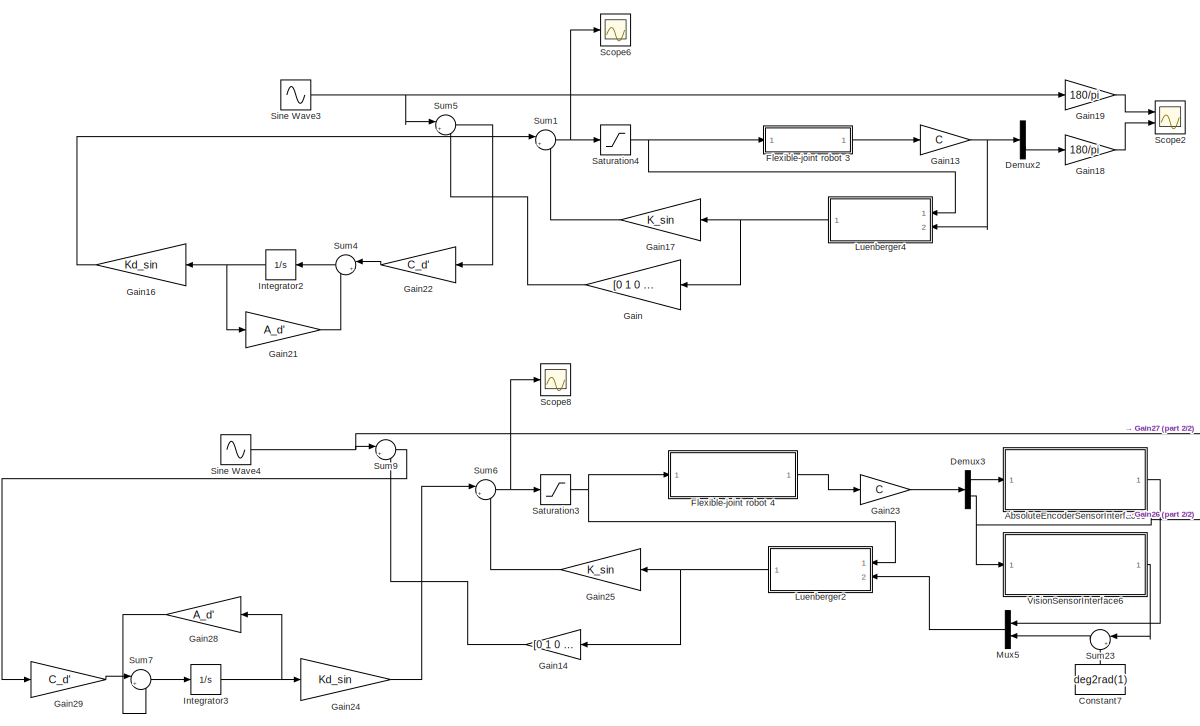
[diagram: root canvas - part 1/2, center side, full height]
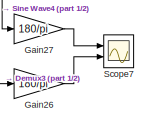
[diagram: root canvas - part 2/2, bottom right region]
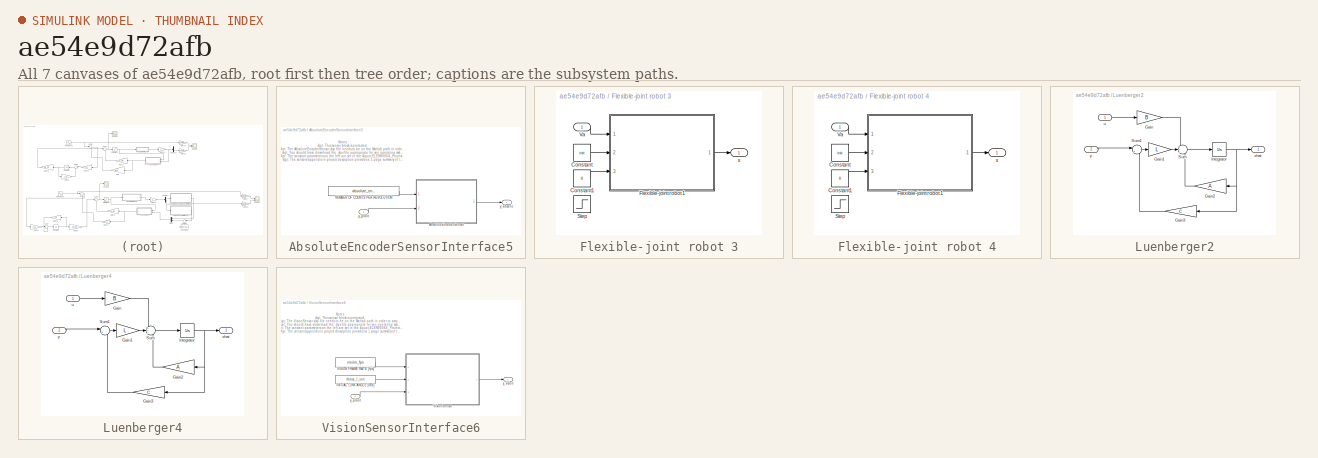
[diagram: thumbnail index - all 7 canvases of the model, root first then tree order]
MODEL slx_ae54e9d72afb
KIND model
CONFIG AbsTol = auto
CONFIG EnableMultiTasking = off
CONFIG FixedStep = auto
CONFIG MaxStep = auto
CONFIG MinStep = auto
CONFIG RelTol = 1e-3
CONFIG SampleTimeConstraint = Unconstrained
CONFIG SolverName = ode45
CONFIG StartTime = 0.0
CONFIG StopTime = 50
BLOCK [SubSystem] AbsoluteEncoderSensorInterface5
  Ports = [1, 1]
  RequestExecContextInheritance = off
  TreatAsAtomicUnit = on
BLOCK [ModelReference] AbsoluteEncoderSensorInterface5/AbsoluteEncoderSensor
  CopyOfModelProtected = on
  ModelNameDialog = AbsoluteEncoderSensor.slxp
  ModelReferenceVersion = 1.16
  Ports = [2, 1]
BLOCK [Constant] AbsoluteEncoderSensorInterface5/NUMBER OF COUNTS PER REVOLUTION
  Value = absolute_encoder_counts_per_revolution
BLOCK [Outport] AbsoluteEncoderSensorInterface5/y_absenc
BLOCK [Inport] AbsoluteEncoderSensorInterface5/y_plant
BLOCK [Constant] Constant7
  NameLocation = right
  Value = deg2rad(1)
BLOCK [Demux] Demux2
  Outputs = 2
  Ports = [1, 2]
BLOCK [Demux] Demux3
  Outputs = 2
  Ports = [1, 2]
BLOCK [SubSystem] Flexible-joint robot 3
  Ports = [1, 1]
  RequestExecContextInheritance = off
BLOCK [Constant] Flexible-joint robot 3/Constant
  Value = init
BLOCK [Constant] Flexible-joint robot 3/Constant1
  Value = 0
BLOCK [ModelReference] Flexible-joint robot 3/Flexible-joint robot 1
  CopyOfModelProtected = on
  ModelNameDialog = Flexible_joint_robot_1
  ModelReferenceVersion = 1.65
  Ports = [3, 1]
BLOCK [Step] Flexible-joint robot 3/Step
  After = 0.05
  SampleTime = 0
BLOCK [Inport] Flexible-joint robot 3/Va
BLOCK [Outport] Flexible-joint robot 3/x
BLOCK [SubSystem] Flexible-joint robot 4
  Ports = [1, 1]
  RequestExecContextInheritance = off
BLOCK [Constant] Flexible-joint robot 4/Constant
  Value = init
BLOCK [Constant] Flexible-joint robot 4/Constant1
  Value = 0
BLOCK [ModelReference] Flexible-joint robot 4/Flexible-joint robot 1
  CopyOfModelProtected = on
  ModelNameDialog = Flexible_joint_robot_1
  ModelReferenceVersion = 1.65
  Ports = [3, 1]
BLOCK [Step] Flexible-joint robot 4/Step
  After = 0.05
  SampleTime = 0
BLOCK [Inport] Flexible-joint robot 4/Va
BLOCK [Outport] Flexible-joint robot 4/x
BLOCK [Gain] Gain
  Gain = [0 1 0 0 0]
  Multiplication = Matrix(K*u) (u vector)
  NameLocation = top
BLOCK [Gain] Gain13
  Gain = C
  Multiplication = Matrix(K*u)
BLOCK [Gain] Gain14
  Gain = [0 1 0 0 0]
  Multiplication = Matrix(K*u) (u vector)
  NameLocation = top
BLOCK [Gain] Gain16
  Gain = Kd_sin
  Multiplication = Matrix(K*u) (u vector)
  NameLocation = top
BLOCK [Gain] Gain17
  Gain = K_sin
  Multiplication = Matrix(K*u)
  NameLocation = top
BLOCK [Gain] Gain18
  Gain = 180/pi
BLOCK [Gain] Gain19
  Gain = 180/pi
BLOCK [Gain] Gain21
  Gain = A_d'
  Multiplication = Matrix(K*u) (u vector)
BLOCK [Gain] Gain22
  Gain = C_d'
  Multiplication = Matrix(K*u) (u vector)
  NameLocation = top
BLOCK [Gain] Gain23
  Gain = C
  Multiplication = Matrix(K*u)
BLOCK [Gain] Gain24
  Gain = Kd_sin
  Multiplication = Matrix(K*u) (u vector)
BLOCK [Gain] Gain25
  Gain = K_sin
  Multiplication = Matrix(K*u)
  NameLocation = top
BLOCK [Gain] Gain26
  Gain = 180/pi
BLOCK [Gain] Gain27
  Gain = 180/pi
BLOCK [Gain] Gain28
  Gain = A_d'
  Multiplication = Matrix(K*u) (u vector)
  NameLocation = top
BLOCK [Gain] Gain29
  Gain = C_d'
  Multiplication = Matrix(K*u) (u vector)
BLOCK [Integrator] Integrator2
  NameLocation = top
  Ports = [1, 1]
BLOCK [Integrator] Integrator3
  Ports = [1, 1]
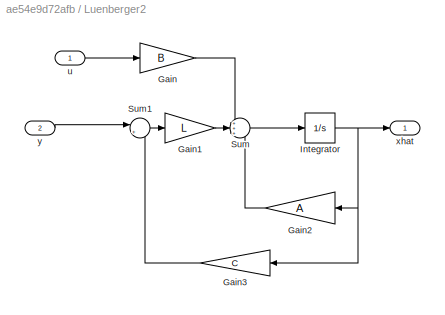
BLOCK [SubSystem] Luenberger2
  NameLocation = top
  Ports = [2, 1]
  RequestExecContextInheritance = off
  TreatAsAtomicUnit = on
BLOCK [Gain] Luenberger2/Gain
  Gain = B
  Multiplication = Matrix(K*u) (u vector)
BLOCK [Gain] Luenberger2/Gain1
  Gain = L
  Multiplication = Matrix(K*u) (u vector)
BLOCK [Gain] Luenberger2/Gain2
  Gain = A
  Multiplication = Matrix(K*u) (u vector)
  NameLocation = top
BLOCK [Gain] Luenberger2/Gain3
  Gain = C
  Multiplication = Matrix(K*u) (u vector)
  NameLocation = top
BLOCK [Integrator] Luenberger2/Integrator
  Ports = [1, 1]
BLOCK [Sum] Luenberger2/Sum
  Inputs = +++
  Ports = [3, 1]
BLOCK [Sum] Luenberger2/Sum1
  Inputs = |+-
  Ports = [2, 1]
BLOCK [Inport] Luenberger2/u
BLOCK [Outport] Luenberger2/xhat
BLOCK [Inport] Luenberger2/y
  Port = 2
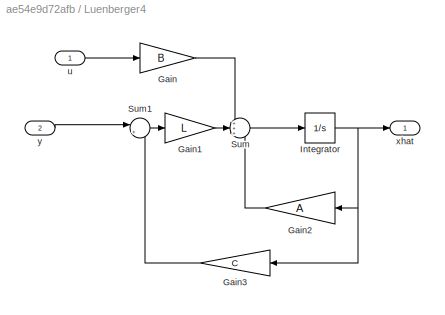
BLOCK [SubSystem] Luenberger4
  NameLocation = top
  Ports = [2, 1]
  RequestExecContextInheritance = off
  TreatAsAtomicUnit = on
BLOCK [Gain] Luenberger4/Gain
  Gain = B
  Multiplication = Matrix(K*u) (u vector)
BLOCK [Gain] Luenberger4/Gain1
  Gain = L
  Multiplication = Matrix(K*u) (u vector)
BLOCK [Gain] Luenberger4/Gain2
  Gain = A
  Multiplication = Matrix(K*u) (u vector)
  NameLocation = top
BLOCK [Gain] Luenberger4/Gain3
  Gain = C
  Multiplication = Matrix(K*u) (u vector)
  NameLocation = top
BLOCK [Integrator] Luenberger4/Integrator
  Ports = [1, 1]
BLOCK [Sum] Luenberger4/Sum
  Inputs = +++
  Ports = [3, 1]
BLOCK [Sum] Luenberger4/Sum1
  Inputs = |+-
  Ports = [2, 1]
BLOCK [Inport] Luenberger4/u
BLOCK [Outport] Luenberger4/xhat
BLOCK [Inport] Luenberger4/y
  Port = 2
BLOCK [Mux] Mux5
  DisplayOption = bar
  Inputs = 2
  NameLocation = top
  Ports = [2, 1]
BLOCK [Saturate] Saturation3
  LowerLimit = -6
  UpperLimit = 6
BLOCK [Saturate] Saturation4
  LowerLimit = -6
  UpperLimit = 6
BLOCK [Scope] Scope2
  Floating = off
  NumInputPorts = 2
  Ports = [2]
  ScopeSpecificationString = Simulink.scopes.TimeScopeBlockCfg('CurrentConfiguration', extmgr.ConfigurationSet(extmgr.Configuration('Core','General UI',true),extmgr.Configuration('Core','Source UI',true),extmgr.Configuration('Sources','WiredSimulink',true,'DataLoggingVariableName','ScopeData1'),extmgr.Configuration('Visuals','Time Domain',true,'SerializedDisplays',{struct('MinYLimReal','-33.54748','MaxYLimReal','40.01306','YL...<+1454ch>
BLOCK [Scope] Scope6
  Floating = off
  NumInputPorts = 1
  Ports = [1]
  ScopeSpecificationString = Simulink.scopes.TimeScopeBlockCfg('CurrentConfiguration', extmgr.ConfigurationSet(extmgr.Configuration('Core','General UI',true),extmgr.Configuration('Core','Source UI',true),extmgr.Configuration('Sources','WiredSimulink',true,'DataLoggingVariableName','ScopeData6'),extmgr.Configuration('Visuals','Time Domain',true,'SerializedDisplays',{struct('MinYLimReal','-7.54141','MaxYLimReal','7.71869','YLab...<+1382ch>
BLOCK [Scope] Scope7
  Floating = off
  NumInputPorts = 2
  Ports = [2]
  ScopeSpecificationString = Simulink.scopes.TimeScopeBlockCfg('CurrentConfiguration', extmgr.ConfigurationSet(extmgr.Configuration('Core','General UI',true),extmgr.Configuration('Core','Source UI',true),extmgr.Configuration('Sources','WiredSimulink',true,'DataLoggingVariableName','ScopeData1'),extmgr.Configuration('Visuals','Time Domain',true,'SerializedDisplays',{struct('MinYLimReal','-39.53246','MaxYLimReal','46.78616','YL...<+1454ch>
BLOCK [Scope] Scope8
  Floating = off
  NumInputPorts = 1
  Ports = [1]
  ScopeSpecificationString = Simulink.scopes.TimeScopeBlockCfg('CurrentConfiguration', extmgr.ConfigurationSet(extmgr.Configuration('Core','General UI',true),extmgr.Configuration('Core','Source UI',true),extmgr.Configuration('Sources','WiredSimulink',true,'DataLoggingVariableName','ScopeData2'),extmgr.Configuration('Visuals','Time Domain',true,'SerializedDisplays',{struct('MinYLimReal','-7.54141','MaxYLimReal','7.71869','YLab...<+1382ch>
BLOCK [Sin] Sine Wave3
  Amplitude = deg2rad(30)
  Frequency = w
  Phase = deg2rad(30)
  Ports = [0, 1]
  SampleTime = 0
BLOCK [Sin] Sine Wave4
  Amplitude = deg2rad(30)
  Frequency = w
  Phase = deg2rad(30)
  Ports = [0, 1]
  SampleTime = 0
BLOCK [Sum] Sum1
  Inputs = |+-
  Ports = [2, 1]
BLOCK [Sum] Sum23
  Inputs = |+-
  NameLocation = top
  Ports = [2, 1]
BLOCK [Sum] Sum4
  Inputs = |++
  NameLocation = top
  Ports = [2, 1]
BLOCK [Sum] Sum5
  Inputs = |+-
  Ports = [2, 1]
BLOCK [Sum] Sum6
  Inputs = |+-
  Ports = [2, 1]
BLOCK [Sum] Sum7
  Inputs = |++
  Ports = [2, 1]
BLOCK [Sum] Sum9
  Inputs = |+-
  Ports = [2, 1]
BLOCK [SubSystem] VisionSensorInterface6
  Ports = [1, 1]
  RequestExecContextInheritance = off
  TreatAsAtomicUnit = on
BLOCK [Constant] VisionSensorInterface6/INITIAL LINK ANGLE [rad]
  Value = theta_l_init
BLOCK [Constant] VisionSensorInterface6/VISION FRAME RATE [fps]
  Value = vision_fps
BLOCK [ModelReference] VisionSensorInterface6/VisionSensor
  CopyOfModelProtected = on
  ModelNameDialog = VisionSensor.slxp
  ModelReferenceVersion = 1.19
  Ports = [3, 1]
BLOCK [Inport] VisionSensorInterface6/y_plant
BLOCK [Outport] VisionSensorInterface6/y_vision
ANNOTATION AbsoluteEncoderSensorInterface5: Notes: > This sensor block is protected. > The AbsoluteEncoderSensor.slxp file needs to be on the Matlab path in order to simulate this sensor. > You should have download the .slpx file appropriate for you operating system {Windows, Mac, Linux}. > The constant parameters on the left are set in the " ELEN90064_Project_Parameters.m " script. > The sensors appendix in project description provides a 1...<+190ch>
ANNOTATION VisionSensorInterface6: Notes: > This sensor block is protected. > The VisionSensor.slxp file needs to be on the Matlab path in order to simulate this sensor. > You should have download the .slpx file appropriate for you operating system {Windows, Mac, Linux}. > The constant parameters on the left are set in the "ELEN90064_Project_Parameters.m" script. > The sensors appendix in project description provides a 1-page summa...<+179ch>
LINE AbsoluteEncoderSensorInterface5/AbsoluteEncoderSensor:1 -> AbsoluteEncoderSensorInterface5/y_absenc:1
LINE AbsoluteEncoderSensorInterface5/NUMBER OF COUNTS PER REVOLUTION:1 -> AbsoluteEncoderSensorInterface5/AbsoluteEncoderSensor:1
LINE AbsoluteEncoderSensorInterface5/y_plant:1 -> AbsoluteEncoderSensorInterface5/AbsoluteEncoderSensor:2
LINE AbsoluteEncoderSensorInterface5:1 -> Mux5:1
LINE Constant7:1 -> Sum23:2
LINE Demux2:2 -> Gain18:1
LINE Demux3:1 -> AbsoluteEncoderSensorInterface5:1
NET Demux3:2 -> Gain26:1, VisionSensorInterface6:1
LINE Flexible-joint robot 3/Constant1:1 -> Flexible-joint robot 3/Flexible-joint robot 1:3
LINE Flexible-joint robot 3/Constant:1 -> Flexible-joint robot 3/Flexible-joint robot 1:2
LINE Flexible-joint robot 3/Flexible-joint robot 1:1 -> Flexible-joint robot 3/x:1
LINE Flexible-joint robot 3/Va:1 -> Flexible-joint robot 3/Flexible-joint robot 1:1
LINE Flexible-joint robot 3:1 -> Gain13:1
LINE Flexible-joint robot 4/Constant1:1 -> Flexible-joint robot 4/Flexible-joint robot 1:3
LINE Flexible-joint robot 4/Constant:1 -> Flexible-joint robot 4/Flexible-joint robot 1:2
LINE Flexible-joint robot 4/Flexible-joint robot 1:1 -> Flexible-joint robot 4/x:1
LINE Flexible-joint robot 4/Va:1 -> Flexible-joint robot 4/Flexible-joint robot 1:1
LINE Flexible-joint robot 4:1 -> Gain23:1
NET Gain13:1 -> Demux2:1, Luenberger4:2
LINE Gain14:1 -> Sum9:2
LINE Gain16:1 -> Sum1:1
LINE Gain17:1 -> Sum1:2
LINE Gain18:1 -> Scope2:2
LINE Gain19:1 -> Scope2:1
LINE Gain21:1 -> Sum4:2
LINE Gain22:1 -> Sum4:1
LINE Gain23:1 -> Demux3:1
LINE Gain24:1 -> Sum6:1
LINE Gain25:1 -> Sum6:2
LINE Gain26:1 -> Scope7:2
LINE Gain27:1 -> Scope7:1
LINE Gain28:1 -> Sum7:2
LINE Gain29:1 -> Sum7:1
LINE Gain:1 -> Sum5:2
NET Integrator2:1 -> Gain16:1, Gain21:1
NET Integrator3:1 -> Gain24:1, Gain28:1
LINE Luenberger2/Gain1:1 -> Luenberger2/Sum:2
LINE Luenberger2/Gain2:1 -> Luenberger2/Sum:3
LINE Luenberger2/Gain3:1 -> Luenberger2/Sum1:2
LINE Luenberger2/Gain:1 -> Luenberger2/Sum:1
NET Luenberger2/Integrator:1 -> Luenberger2/Gain2:1, Luenberger2/Gain3:1, Luenberger2/xhat:1
LINE Luenberger2/Sum1:1 -> Luenberger2/Gain1:1
LINE Luenberger2/Sum:1 -> Luenberger2/Integrator:1
LINE Luenberger2/u:1 -> Luenberger2/Gain:1
LINE Luenberger2/y:1 -> Luenberger2/Sum1:1
NET Luenberger2:1 -> Gain14:1, Gain25:1
LINE Luenberger4/Gain1:1 -> Luenberger4/Sum:2
LINE Luenberger4/Gain2:1 -> Luenberger4/Sum:3
LINE Luenberger4/Gain3:1 -> Luenberger4/Sum1:2
LINE Luenberger4/Gain:1 -> Luenberger4/Sum:1
NET Luenberger4/Integrator:1 -> Luenberger4/Gain2:1, Luenberger4/Gain3:1, Luenberger4/xhat:1
LINE Luenberger4/Sum1:1 -> Luenberger4/Gain1:1
LINE Luenberger4/Sum:1 -> Luenberger4/Integrator:1
LINE Luenberger4/u:1 -> Luenberger4/Gain:1
LINE Luenberger4/y:1 -> Luenberger4/Sum1:1
NET Luenberger4:1 -> Gain17:1, Gain:1
LINE Mux5:1 -> Luenberger2:2
NET Saturation3:1 -> Flexible-joint robot 4:1, Luenberger2:1
NET Saturation4:1 -> Flexible-joint robot 3:1, Luenberger4:1
NET Sine Wave3:1 -> Gain19:1, Sum5:1
NET Sine Wave4:1 -> Gain27:1, Sum9:1
NET Sum1:1 -> Saturation4:1, Scope6:1
LINE Sum23:1 -> Mux5:2
LINE Sum4:1 -> Integrator2:1
LINE Sum5:1 -> Gain22:1
NET Sum6:1 -> Saturation3:1, Scope8:1
LINE Sum7:1 -> Integrator3:1
LINE Sum9:1 -> Gain29:1
LINE VisionSensorInterface6/INITIAL LINK ANGLE [rad]:1 -> VisionSensorInterface6/VisionSensor:2
LINE VisionSensorInterface6/VISION FRAME RATE [fps]:1 -> VisionSensorInterface6/VisionSensor:1
LINE VisionSensorInterface6/VisionSensor:1 -> VisionSensorInterface6/y_vision:1
LINE VisionSensorInterface6/y_plant:1 -> VisionSensorInterface6/VisionSensor:3
LINE VisionSensorInterface6:1 -> Sum23:1
note: NET lines group one-source signal fan-out (src -> all destinations, sorted); 1:1 wires keep LINE
